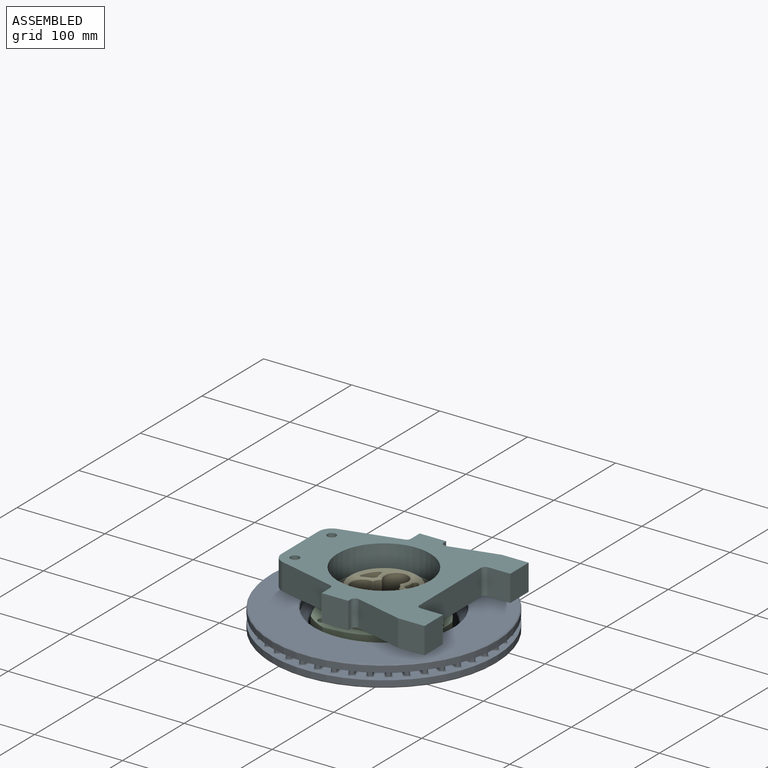
[diagram: assembled view]
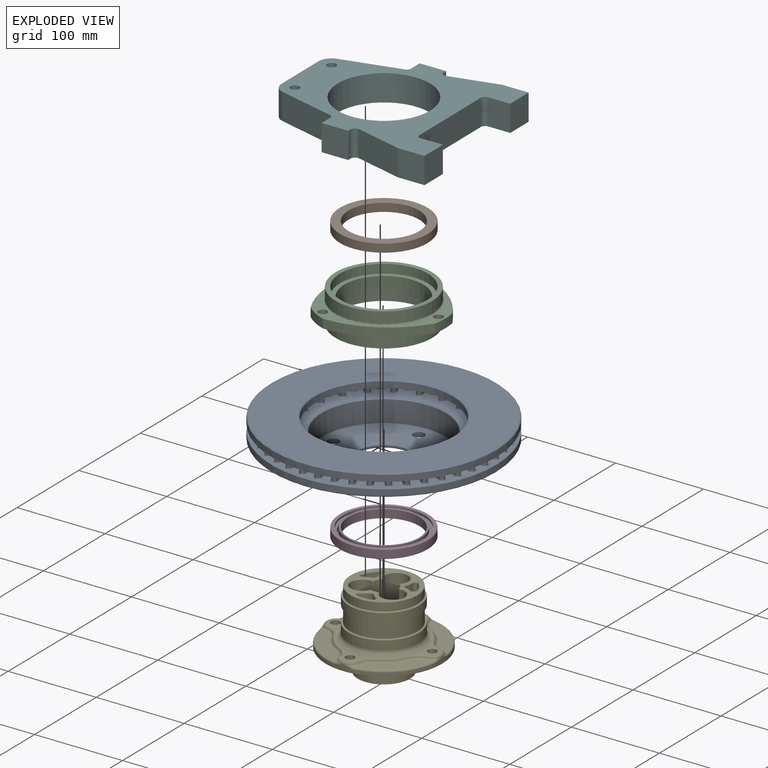
[diagram: exploded view]
GUIDED TOUR — MATED ASSEMBLY (Onshape document a087db71578458f491e62c10, AutoMate assembly a087db71578458f491e62c10_b3097c836741274470b6065a_f3e599a2338b0980392ec9e7_default)

This assembly has 6 components, labeled P0..P5 below (a component is one placed occurrence of a part; the same part can appear more than once), held together by 7 mates. A mate is a constraint between two components; its type names the relative motion it leaves free:
  CYLINDRICAL — leaves both rotation about and translation along the listed axis free,
  PLANAR — leaves sliding in the plane through the listed point (normal = the listed direction) and rotation about that normal free,
  REVOLUTE — leaves rotation about the listed axis free (a hinge).
Axis/direction vectors are unit vectors and 'through' points are millimeter coordinates, both in the assembly's world frame.

MATES
  1. REVOLUTE "Revolute 1": P3 <-> P4, axis (0.000, 0.000, -1.000) through (-6.87, -8.83, 3.77) mm
  2. PLANAR "Planar 1": P4 <-> P1, direction (0.000, 0.000, -1.000) through (-6.87, -8.83, 36.77) mm
  3. CYLINDRICAL "Cylindrical 3": P2 <-> P5, axis (0.000, 0.000, -1.000) through (-6.87, -8.83, 35.27) mm
  4. PLANAR "Planar 3": P4 <-> P0, direction (0.000, 0.000, -1.000) through (-6.87, -8.83, -11.23) mm
  5. PLANAR "Planar 2": P2 <-> P3, direction (0.000, 0.000, -1.000) through (-6.87, -8.83, 3.77) mm
  6. CYLINDRICAL "Cylindrical 2": P0 <-> P4, axis (0.000, 0.000, 1.000) through (-6.87, -8.83, -5.73) mm
  7. CYLINDRICAL "Cylindrical 1": P2 <-> P3, axis (0.000, 0.000, -1.000) through (-6.87, -8.83, 3.77) mm

ASSEMBLY ORDER
  1. P4 — the base component [order heuristic]
  2. P3 — core [order heuristic]
  3. P0 — core [order heuristic]
  4. P2 — core [order heuristic]
  5. P1 — core [order heuristic]
  6. P5 [order verified]
Order-tag legend:
  [order verified] — this step's position reverses a verified removal order: the component was checked to insert without passing through the ones already placed.
  [order heuristic] — the first 5 components form the assembly's core: parts whose collision-free extraction could not be verified, listed in mate-graph order.

Of the 6 components, 2 carry the full construction recipe — the FeatureScript program that regenerates the part's solid from scratch; the rest are supplied as boundary geometry only.
Each toured component is shown spotlighted twice — in the assembled view, then in the exploded view, where a leader line traces a displaced component back to its assembled socket (saturated green if recipe-attached, orange if geometry-only; every other component desaturated gray) — followed by its recipe or geometry summary and the mates that hold it.
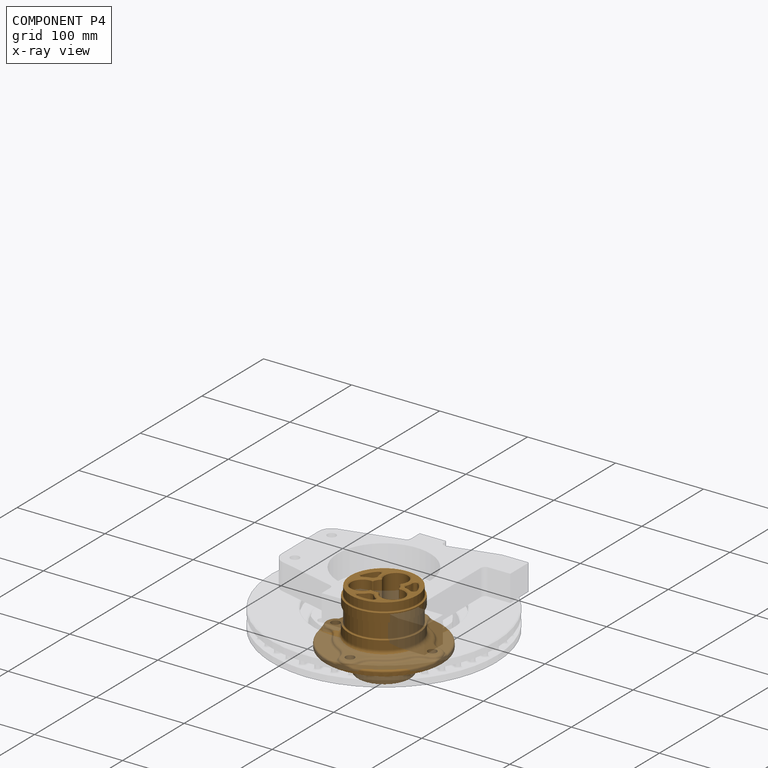
[diagram: component P4 — x-ray view]
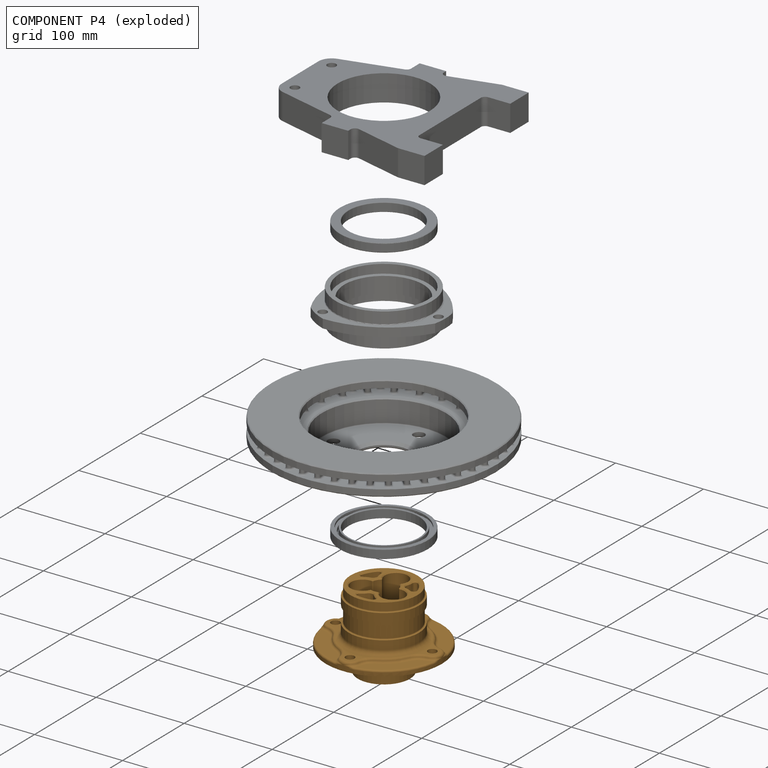
[diagram: component P4 — exploded]
COMPONENT P4 — geometry summary (no construction recipe available for this part):
  bounding box: 140.5 x 140.5 x 88.0 mm
  B-rep topology: 1 solid, 217 faces, 982 edges
  volume: 262809 mm^3 (15% of its bounding box)
  symmetry: mirror-symmetric across its x mid-plane
Held by: REVOLUTE mate "Revolute 1" to P3; PLANAR mate "Planar 1" to P1; PLANAR mate "Planar 3" to P0; CYLINDRICAL mate "Cylindrical 2" to P0.
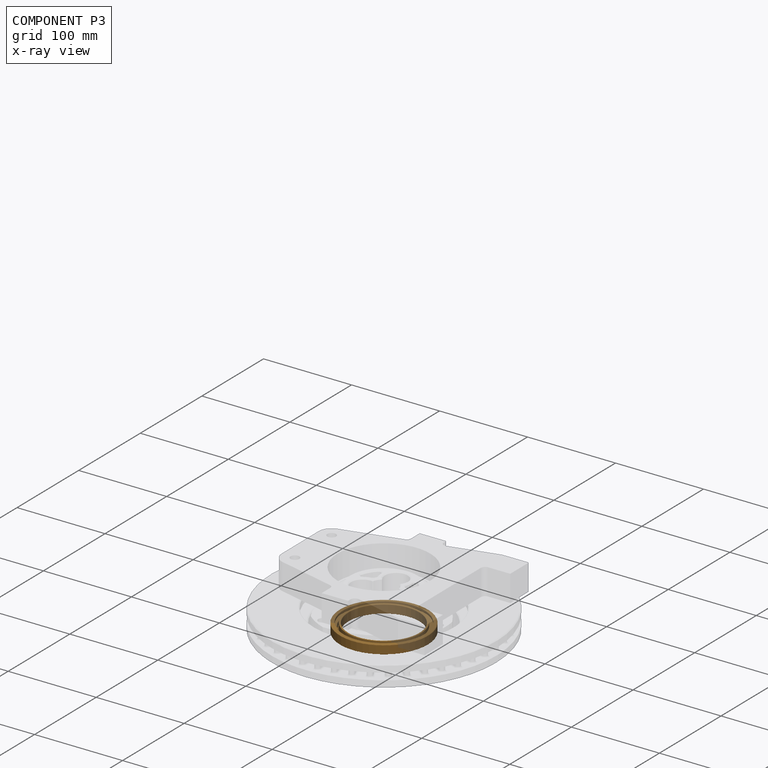
[diagram: component P3 — x-ray view]
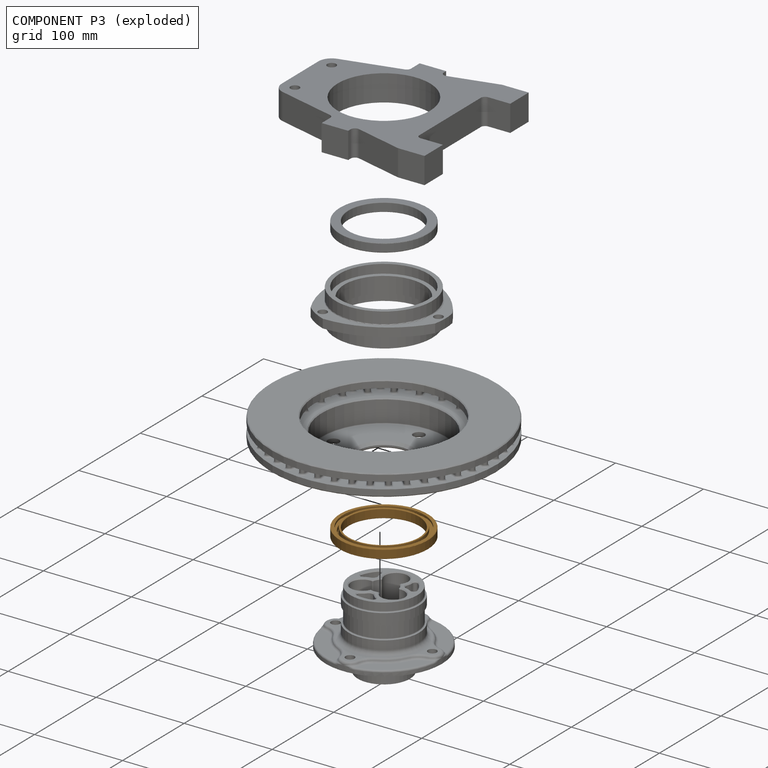
[diagram: component P3 — exploded]
COMPONENT P3 — geometry summary (no construction recipe available for this part):
  bounding box: 108.2 x 108.2 x 10.0 mm
  B-rep topology: 1 solid, 31 faces, 150 edges
  volume: 22747 mm^3 (19% of its bounding box)
  symmetry: mirror-symmetric across its z mid-plane
Held by: REVOLUTE mate "Revolute 1" to P4; PLANAR mate "Planar 2" to P2; CYLINDRICAL mate "Cylindrical 1" to P2.
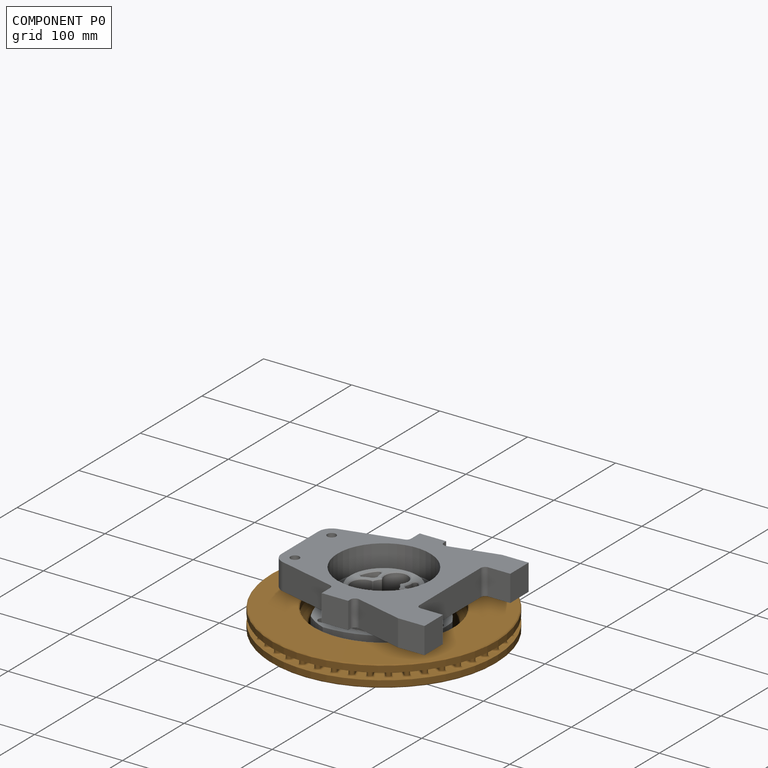
[diagram: component P0 — assembled]
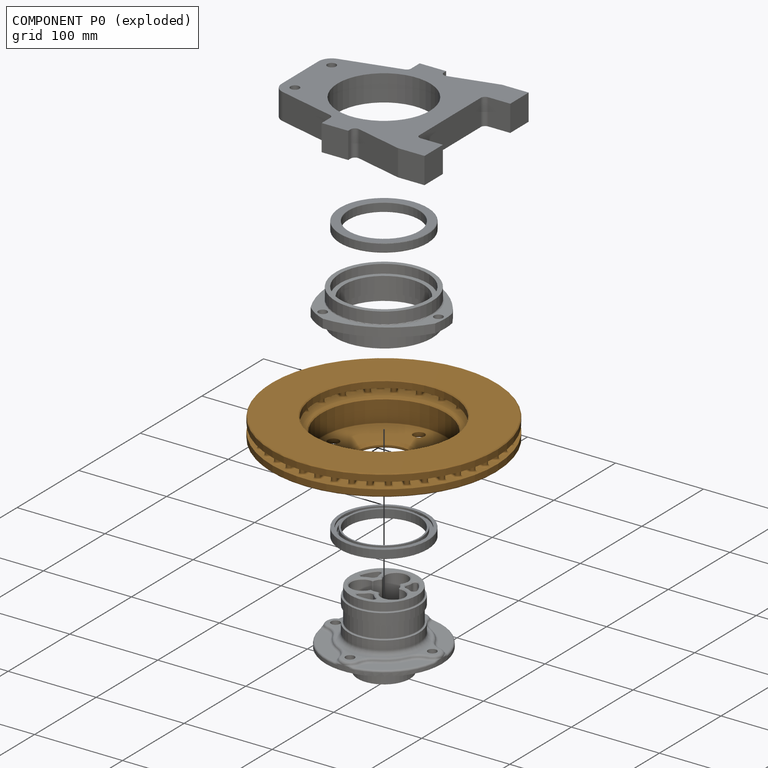
[diagram: component P0 — exploded]
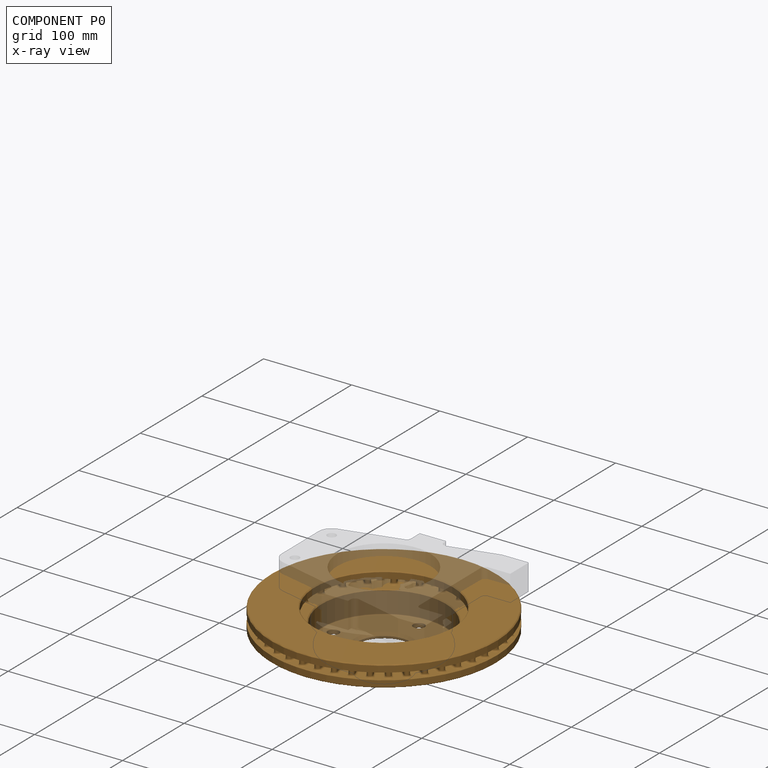
[diagram: component P0 — x-ray view]
COMPONENT P0 — geometry summary (no construction recipe available for this part):
  bounding box: 256.0 x 256.0 x 47.0 mm
  B-rep topology: 1 solid, 569 faces, 2626 edges
  volume: 762171 mm^3 (25% of its bounding box)
  symmetry: mirror-symmetric across its x mid-plane
Held by: PLANAR mate "Planar 3" to P4; CYLINDRICAL mate "Cylindrical 2" to P4.
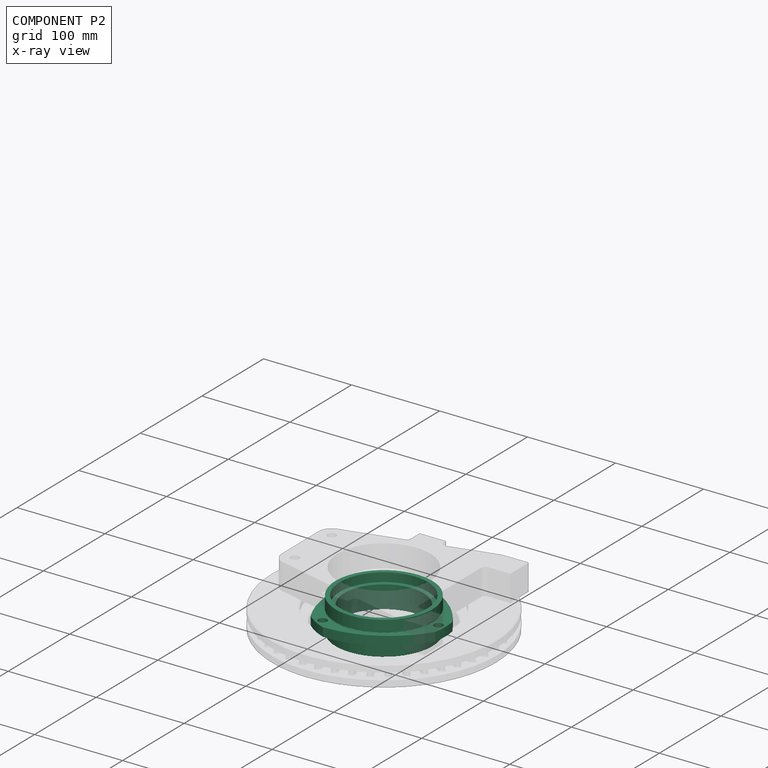
[diagram: component P2 — x-ray view]
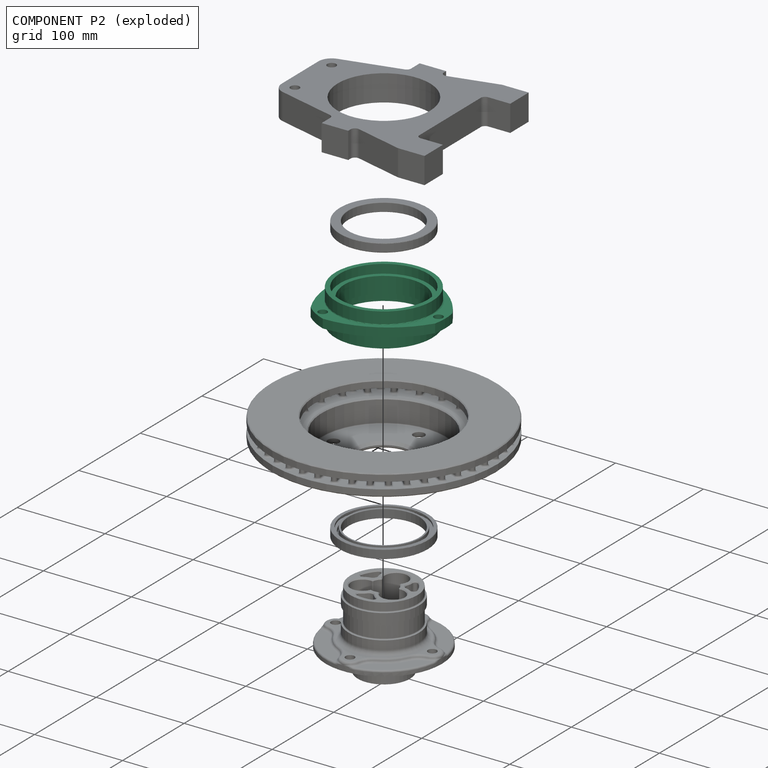
[diagram: component P2 — exploded]
COMPONENT P2 — recipe-attached (CADFS 00646146, mesh-verified: the recipe's output STEP matches this component's geometry to below the mesh-comparison resolution (tessellation chordal tolerance ~0.284 mm)).
Held by: CYLINDRICAL mate "Cylindrical 3" to P5; PLANAR mate "Planar 2" to P3; CYLINDRICAL mate "Cylindrical 1" to P3.
Construction recipe (FeatureScript — the CAD program that rebuilds this solid; sketch coordinates are in the units given by the * unit suffixes, e.g. mm):

FeatureScript 2130;
import(path : "onshape/std/geometry.fs", version : "2130.0");
import(path : "onshape/std/common.fs", version : "2130.0");
const mm = millimeter;
const VERTEX = EntityType.VERTEX;
const EDGE = EntityType.EDGE;
const FACE = EntityType.FACE;
const BODY = EntityType.BODY;
function v(x, y){return vector(x, y);}
function OD(order){return orderDisambiguation(order);}
function OSD(set){return originalSetDisambiguation(set);}
function TD(topology){return topologyDisambiguation(topology);}
function TDD(query){return trueDependencyDisambiguation(query);}
function sQuery(a, b, c) {return sketchEntityQuery(a, b, c);}

annotation { "Feature Type Name" : "Feature", "Feature Type Description" : "" }
export const myFeature = defineFeature(function(context is Context, id is Id, definition is map)
    precondition{}
    {
        {
            var Q0;
            Q0=qCreatedBy(makeId("Right.planeOp"),FACE);
            var sketch = newSketch(context, id + "F0", { "sketchPlane" : qUnion([Q0])});
            skLineSegment(sketch, "E0", {"start": v(-36.67, 0) * mm, "end": v(37.6, 0) * mm, "construction": true});
            skLineSegment(sketch, "E1", {"start": v(0, 0) * mm, "end": v(0, 45) * mm, "construction": true});
            skLineSegment(sketch, "E2", {"start": v(-19, 50) * mm, "end": v(-9, 50) * mm});
            skLineSegment(sketch, "E3", {"start": v(-9, 50) * mm, "end": v(-9, 45) * mm});
            skLineSegment(sketch, "E4", {"start": v(-9, 45) * mm, "end": v(9, 45) * mm});
            skLineSegment(sketch, "E5", {"start": v(9, 45) * mm, "end": v(9, 50) * mm});
            skLineSegment(sketch, "E6", {"start": v(9, 50) * mm, "end": v(19, 50) * mm});
            skLineSegment(sketch, "E7", {"start": v(-19, 50) * mm, "end": v(-19, 55) * mm});
            skLineSegment(sketch, "E8", {"start": v(-19, 55) * mm, "end": v(-5, 55) * mm});
            skLineSegment(sketch, "E9", {"start": v(-5, 55) * mm, "end": v(-5, 70) * mm});
            skLineSegment(sketch, "E10", {"start": v(-5, 70) * mm, "end": v(5, 70) * mm});
            skLineSegment(sketch, "E11", {"start": v(5, 70) * mm, "end": v(5, 55) * mm});
            skLineSegment(sketch, "E12", {"start": v(5, 55) * mm, "end": v(19, 55) * mm});
            skLineSegment(sketch, "E13", {"start": v(19, 55) * mm, "end": v(19, 50) * mm});
            skLineSegment(sketch, "E14", {"start": v(0, 70) * mm, "end": v(0, 45) * mm, "construction": true});
            skSolve(sketch);
        }
        {
            var Q0;
            Q0=makeQuery(id+"F0.imprint","IMPRINT",FACE,{"disambiguationData":[TD([[makeQuery(id+"F0.imprint","IMPRINT",EDGE,{"derivedFrom":sQuery(id+"F0.wireOp",EDGE,"E2")}),1.0]])]});
            var Q1;
            Q1=sQuery(id+"F0.wireOp",EDGE,"E0");
            revolve(context, id + "F1", {"entities" : qUnion([Q0]), "axis" : qUnion([Q1]), "revolveType" : RevolveType.FULL});
        }
        {
            var Q0;
            Q0=makeQuery(id+"F1.opRevolve","SWEPT_FACE",FACE,{"disambiguationData":[OSD([sQuery(id+"F0.wireOp",EDGE,"E9")])]});
            var sketch = newSketch(context, id + "F2", { "sketchPlane" : qUnion([Q0])});
            skCircle(sketch, "E15", {"center": v(0, 0) * mm, "radius": 62.5 * mm, "construction": true});
            skCircle(sketch, "E16", {"center": v(0, 62.5) * mm, "radius": 5 * mm});
            skCircle(sketch, "E17.1.0", {"center": v(-54.13, -31.25) * mm, "radius": 5 * mm});
            skCircle(sketch, "E17.2.0", {"center": v(54.13, -31.25) * mm, "radius": 5 * mm});
            skSolve(sketch);
        }
        {
            var Q0;
            Q0 = qSketchRegion(id + "F2", true);
            extrude(context, id + "F3", {"entities" : qUnion([Q0]), "operationType" : NewBodyOperationType.REMOVE, "endBound" : BoundingType.THROUGH_ALL, "oppositeDirection" : true, "depth" : 25 * mm, "offsetDistance" : 25 * mm});
        }
        {
            var Q0;
            Q0=makeQuery(id+"F1.opRevolve","SWEPT_FACE",FACE,{"disambiguationData":[OSD([sQuery(id+"F0.wireOp",EDGE,"E9")])]});
            var sketch = newSketch(context, id + "F4", { "sketchPlane" : qUnion([Q0])});
            skArc(sketch, "E18", {"start": v(13.74, 68.64) * mm, "mid": v(0, 70) * mm, "end": v(-13.74, 68.64) * mm});
            skLineSegment(sketch, "E19", {"start": v(0, 62.5) * mm, "end": v(0, 0) * mm, "construction": true});
            skArc(sketch, "E20.1.0", {"start": v(-66.31, -22.42) * mm, "mid": v(-60.62, -35) * mm, "end": v(-52.57, -46.22) * mm});
            skArc(sketch, "E20.2.0", {"start": v(52.57, -46.22) * mm, "mid": v(60.62, -35) * mm, "end": v(66.31, -22.42) * mm});
            skCircle(sketch, "E21", {"center": v(0, 0) * mm, "radius": 60 * mm, "construction": true});
            skArc(sketch, "E22", {"start": v(66.31, -22.42) * mm, "mid": v(51.96, 30) * mm, "end": v(13.74, 68.64) * mm});
            skArc(sketch, "E23.1.0", {"start": v(-13.74, 68.64) * mm, "mid": v(-51.96, 30) * mm, "end": v(-66.31, -22.42) * mm});
            skArc(sketch, "E23.2.0", {"start": v(-52.57, -46.22) * mm, "mid": v(0, -60) * mm, "end": v(52.57, -46.22) * mm});
            skCircle(sketch, "E24", {"center": v(0, 0) * mm, "radius": 81.96 * mm});
            skSolve(sketch);
        }
        {
            var Q0;
            Q0 = qSketchRegion(id + "F4", true);
            extrude(context, id + "F5", {"entities" : qUnion([Q0]), "operationType" : NewBodyOperationType.REMOVE, "endBound" : BoundingType.THROUGH_ALL, "oppositeDirection" : true, "depth" : 25 * mm, "offsetDistance" : 25 * mm});
        }
        {
            var Q0;
            Q0=makeQuery(id+"F1.opRevolve","SWEPT_EDGE",EDGE,{"disambiguationData":[OSD([sQuery(id+"F0.wireOp",EDGE,"E8"),sQuery(id+"F0.wireOp",EDGE,"E9")])]});
            var Q1;
            Q1=makeQuery(id+"F1.opRevolve","SWEPT_EDGE",EDGE,{"disambiguationData":[OSD([sQuery(id+"F0.wireOp",EDGE,"E11"),sQuery(id+"F0.wireOp",EDGE,"E12")])]});
            fillet(context, id + "F6", {"entities" : qUnion([Q0, Q1]), "radius" : 1 * mm, "tangentPropagation" : true, "allowEdgeOverflow" : false});
        }
    });
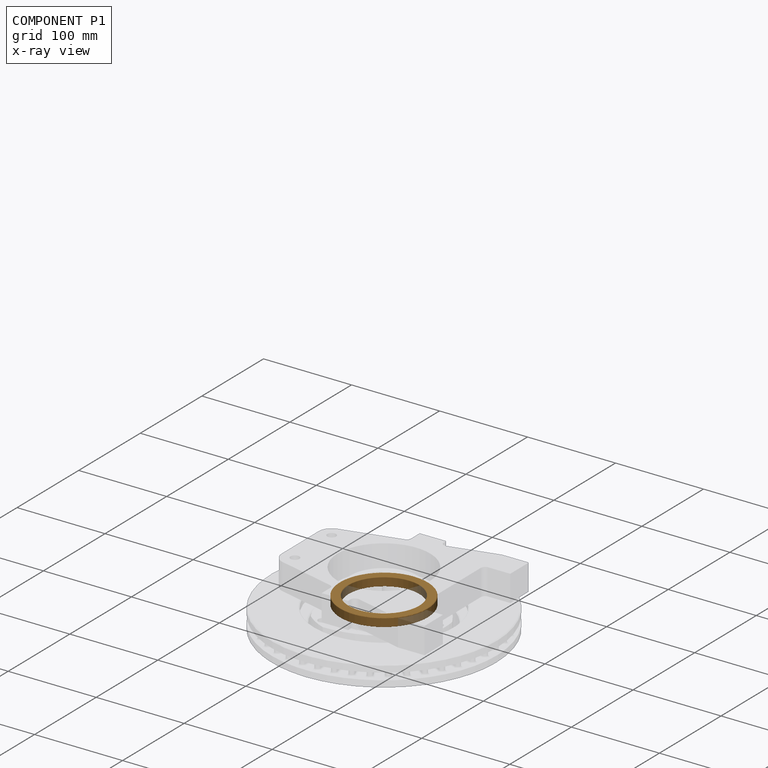
[diagram: component P1 — x-ray view]
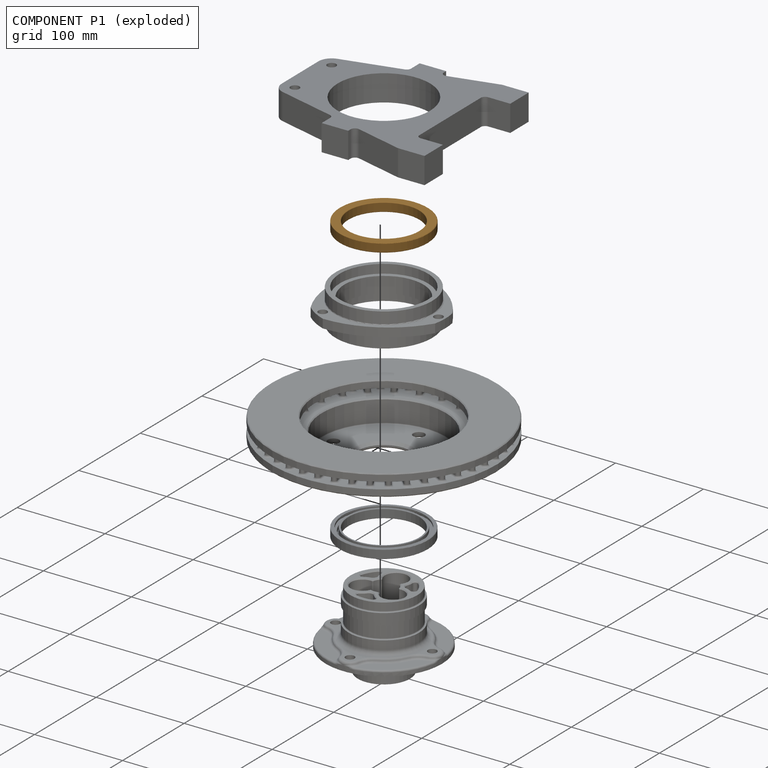
[diagram: component P1 — exploded]
COMPONENT P1 — geometry summary (no construction recipe available for this part):
  bounding box: 108.2 x 108.2 x 10.0 mm
  B-rep topology: 1 solid, 31 faces, 150 edges
  volume: 22747 mm^3 (19% of its bounding box)
  symmetry: mirror-symmetric across its z mid-plane
Held by: PLANAR mate "Planar 1" to P4.
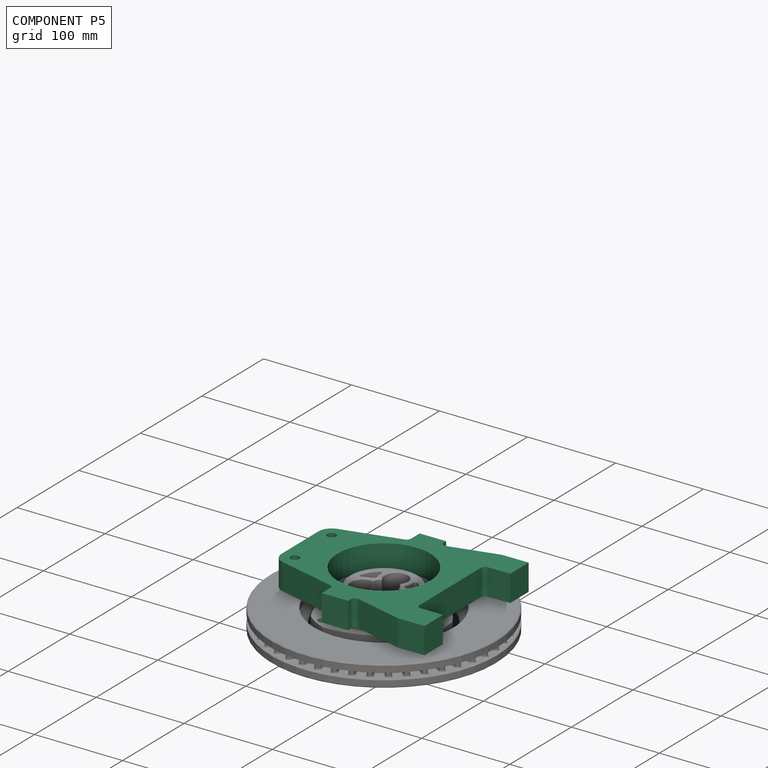
[diagram: component P5 — assembled]
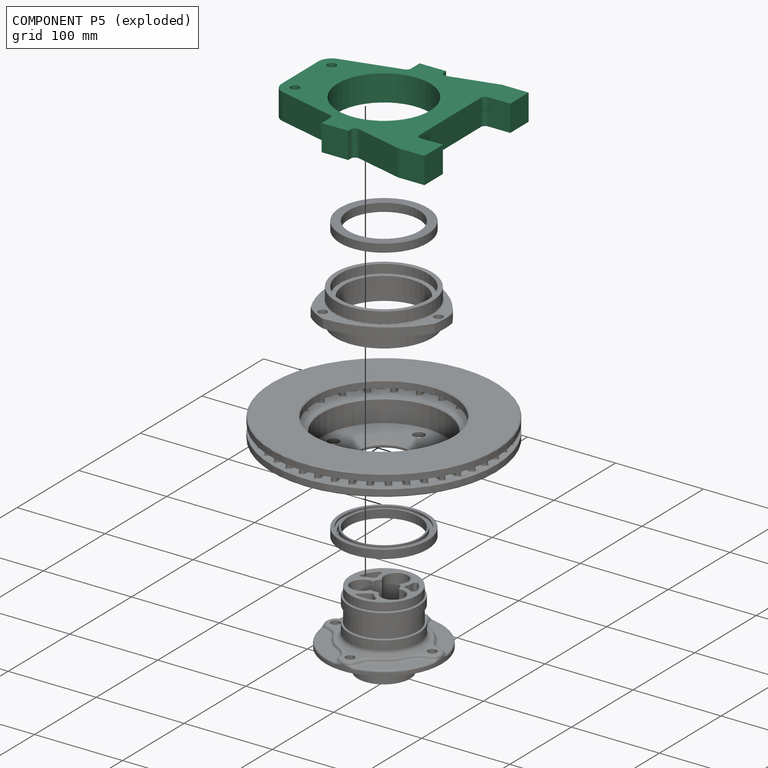
[diagram: component P5 — exploded]
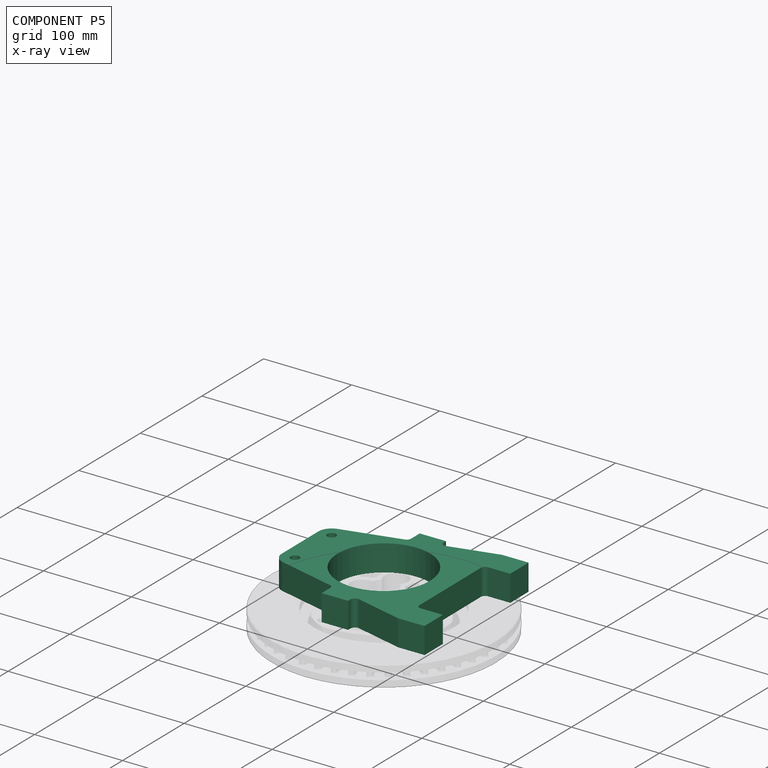
[diagram: component P5 — x-ray view]
COMPONENT P5 — recipe-attached (CADFS 00646147, mesh-verified: the recipe's output STEP matches this component's geometry to below the mesh-comparison resolution (tessellation chordal tolerance ~0.396 mm)).
Held by: CYLINDRICAL mate "Cylindrical 3" to P2.
Construction recipe (FeatureScript — the CAD program that rebuilds this solid; sketch coordinates are in the units given by the * unit suffixes, e.g. mm):

FeatureScript 2130;
import(path : "onshape/std/geometry.fs", version : "2130.0");
import(path : "onshape/std/common.fs", version : "2130.0");
const mm = millimeter;
const VERTEX = EntityType.VERTEX;
const EDGE = EntityType.EDGE;
const FACE = EntityType.FACE;
const BODY = EntityType.BODY;
function v(x, y){return vector(x, y);}
function OD(order){return orderDisambiguation(order);}
function OSD(set){return originalSetDisambiguation(set);}
function TD(topology){return topologyDisambiguation(topology);}
function TDD(query){return trueDependencyDisambiguation(query);}
function sQuery(a, b, c) {return sketchEntityQuery(a, b, c);}

annotation { "Feature Type Name" : "Feature", "Feature Type Description" : "" }
export const myFeature = defineFeature(function(context is Context, id is Id, definition is map)
    precondition{}
    {
        {
            var Q0;
            Q0=qCreatedBy(makeId("Front.planeOp"),FACE);
            var sketch = newSketch(context, id + "F0", { "sketchPlane" : qUnion([Q0])});
            skLineSegment(sketch, "E0", {"start": v(-85, 0) * mm, "end": v(-55, 0) * mm});
            skLineSegment(sketch, "E1", {"start": v(-55, 0) * mm, "end": v(-55, 30) * mm});
            skLineSegment(sketch, "E2", {"start": v(-55, 30) * mm, "end": v(-85, 30) * mm, "construction": true});
            skLineSegment(sketch, "E3", {"start": v(-85, 30) * mm, "end": v(-85, 0) * mm});
            skLineSegment(sketch, "E4", {"start": v(0, 0) * mm, "end": v(0, 185) * mm, "construction": true});
            skCircle(sketch, "E5", {"center": v(0, 105) * mm, "radius": 52.5 * mm, "construction": true});
            skLineSegment(sketch, "E6", {"start": v(-70, 0) * mm, "end": v(-70, 30) * mm, "construction": true});
            skCircle(sketch, "E7", {"center": v(-30, 185) * mm, "radius": 5 * mm});
            skLineSegment(sketch, "E8", {"start": v(-30, 185) * mm, "end": v(0, 185) * mm, "construction": true});
            skLineSegment(sketch, "E9", {"start": v(-55, 30) * mm, "end": v(0, 30) * mm});
            skArc(sketch, "E10.0.startCap", {"start": v(-30, 170) * mm, "mid": v(-45, 185) * mm, "end": v(-30, 200) * mm, "construction": true});
            skLineSegment(sketch, "E10.0.left", {"start": v(-30, 200) * mm, "end": v(0, 200) * mm, "construction": true});
            skLineSegment(sketch, "E10.0.right", {"start": v(-30, 170) * mm, "end": v(0, 170) * mm, "construction": true});
            skLineSegment(sketch, "E11", {"start": v(-85, 30) * mm, "end": v(-69.7, 90) * mm});
            skArc(sketch, "E12", {"start": v(-30, 200) * mm, "mid": v(-39.2, 196.84) * mm, "end": v(-44.53, 188.7) * mm});
            skLineSegment(sketch, "E13", {"start": v(-30, 200) * mm, "end": v(0, 200) * mm});
            skLineSegment(sketch, "E14.bottom", {"start": v(-80, 120) * mm, "end": v(0, 120) * mm, "construction": true});
            skLineSegment(sketch, "E14.top", {"start": v(-80, 90) * mm, "end": v(0, 90) * mm, "construction": true});
            skLineSegment(sketch, "E14.left", {"start": v(-80, 120) * mm, "end": v(-80, 90) * mm, "construction": true});
            skLineSegment(sketch, "E15.trimOffspring", {"start": v(-62.05, 120) * mm, "end": v(-44.53, 188.7) * mm});
            skLineSegment(sketch, "E16", {"start": v(-62.05, 120) * mm, "end": v(-69.7, 90) * mm, "construction": true});
            skLineSegment(sketch, "E17", {"start": v(0, 105) * mm, "end": v(-135.3, 105) * mm, "construction": true});
            skLineSegment(sketch, "E18", {"start": v(-62.05, 120) * mm, "end": v(-80, 120) * mm});
            skLineSegment(sketch, "E19", {"start": v(-80, 90) * mm, "end": v(-80, 120) * mm});
            skLineSegment(sketch, "E20", {"start": v(-80, 90) * mm, "end": v(-69.7, 90) * mm});
            skLineSegment(sketch, "E21", {"start": v(0, 200) * mm, "end": v(0, 157.5) * mm});
            skLineSegment(sketch, "E22", {"start": v(0, 52.5) * mm, "end": v(0, 30) * mm});
            skArc(sketch, "E23", {"start": v(0, 157.5) * mm, "mid": v(-52.5, 105) * mm, "end": v(0, 52.5) * mm});
            skSolve(sketch);
        }
        {
            var Q0;
            Q0=makeQuery(id+"F0.imprint","IMPRINT",FACE,{"disambiguationData":[TD([[makeQuery(id+"F0.imprint","IMPRINT",EDGE,{"derivedFrom":sQuery(id+"F0.wireOp",EDGE,"E0")}),1.0]])]});
            extrude(context, id + "F1", {"entities" : qUnion([Q0]), "depth" : 30 * mm, "offsetDistance" : 25 * mm, "symmetric" : true});
        }
        {
            var Q0;
            Q0=makeQuery(id+"F1.opExtrude","SWEPT_EDGE",EDGE,{"disambiguationData":[OSD([sQuery(id+"F0.wireOp",EDGE,"E11"),sQuery(id+"F0.wireOp",EDGE,"E20")])]});
            var Q1;
            Q1=makeQuery(id+"F1.opExtrude","SWEPT_EDGE",EDGE,{"disambiguationData":[OSD([sQuery(id+"F0.wireOp",EDGE,"E15.trimOffspring"),sQuery(id+"F0.wireOp",EDGE,"E18")])]});
            var Q2;
            Q2=makeQuery(id+"F1.opExtrude","SWEPT_EDGE",EDGE,{"disambiguationData":[OSD([sQuery(id+"F0.wireOp",EDGE,"E3"),sQuery(id+"F0.wireOp",EDGE,"E11")])]});
            var Q3;
            Q3=makeQuery(id+"F1.opExtrude","SWEPT_EDGE",EDGE,{"disambiguationData":[OSD([sQuery(id+"F0.wireOp",EDGE,"E1"),sQuery(id+"F0.wireOp",EDGE,"E9")])]});
            fillet(context, id + "F2", {"entities" : qUnion([Q0, Q1, Q2, Q3]), "radius" : 5 * mm, "tangentPropagation" : true, "allowEdgeOverflow" : false});
        }
        {
            var Q0;
            Q0=makeQuery(id+"F1.opExtrude","SWEPT_BODY",BODY,{"disambiguationData":[OSD([sQuery(id+"F0.wireOp",EDGE,"E0"),sQuery(id+"F0.wireOp",EDGE,"E1"),sQuery(id+"F0.wireOp",EDGE,"E3"),sQuery(id+"F0.wireOp",EDGE,"E7"),sQuery(id+"F0.wireOp",EDGE,"E9"),sQuery(id+"F0.wireOp",EDGE,"E11"),sQuery(id+"F0.wireOp",EDGE,"E12"),sQuery(id+"F0.wireOp",EDGE,"E13"),sQuery(id+"F0.wireOp",EDGE,"E15.trimOffspring"),sQuery(id+"F0.wireOp",EDGE,"E18"),sQuery(id+"F0.wireOp",EDGE,"E19"),sQuery(id+"F0.wireOp",EDGE,"E20"),sQuery(id+"F0.wireOp",EDGE,"E21"),sQuery(id+"F0.wireOp",EDGE,"E22"),sQuery(id+"F0.wireOp",EDGE,"E23")])]});
            var Q1;
            Q1=qCreatedBy(makeId("Right.planeOp"),FACE);
            mirror(context, id + "F3", {"operationType" : NewBodyOperationType.ADD, "entities" : qUnion([Q0]), "mirrorPlane" : qUnion([Q1])});
        }
    });
PROVENANCE & LICENSES
Assembly (occurrences, transforms, mates, per-part STEP geometry): AutoMate dataset, Zenodo record 7776208, CC0.
Construction recipes: CADFS (HuggingFace VladPyatov/CADFS, CC-BY-4.0, layered over the ABC dataset), FeatureScript reconstruction programs keyed by ABC model id.
Join: ABC meta listings map ABC model id -> Onshape documentId; within a shared document, parts are matched by geometric signature (bounding-box dims + volume at 0.1% relative tolerance, exact B-rep face/solid counts).
Verification: 2 of this assembly's 6 components carry a recipe attachment, and every attachment is mesh-verified: the CADFS STEP and the AutoMate member STEP were compared as meshes in their shared local frame (symmetric sampled-point-to-mesh distance); worst across the 2 attachments: below the mesh-comparison resolution (tessellation chordal tolerance ~0.396 mm) on a 264 mm part.
Renders: orthographic iso camera (az 35 / el 25); the floor grid conveys scale (grid pitch printed in each image; no ruler). In the exploded view each component is displaced by its stored offset vector: the offsets alone carry the explosion direction (mate normal/axis signs are not orientation cues and do not encode it), and separation distances are assigned per mate-chain, not proportionally to assembly-order depth.
